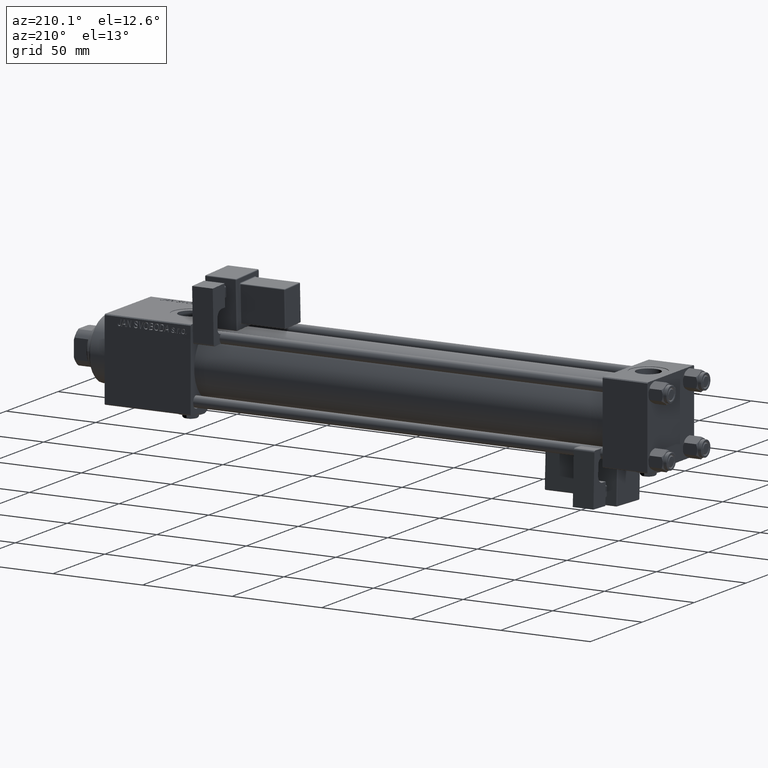
[diagram: clean part render]
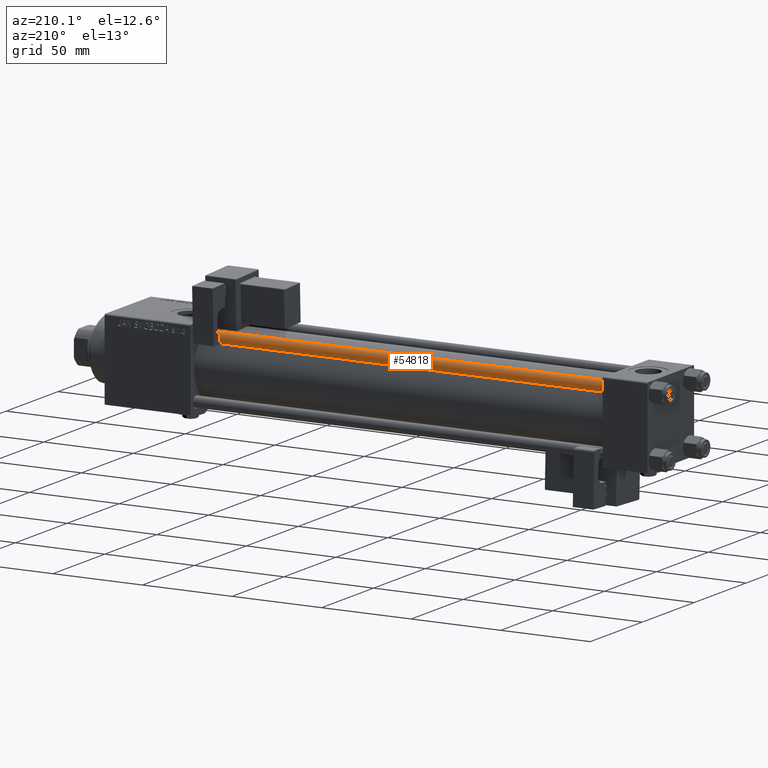
[diagram: same view with one face highlighted and labeled with its STEP entity id]
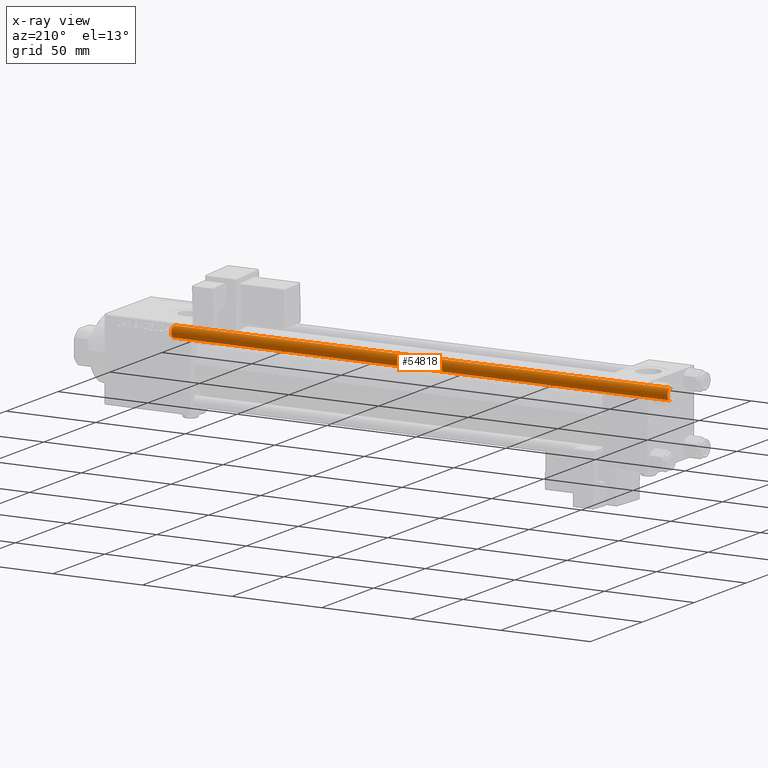
[diagram: x-ray of the same camera — body ghosted, the highlighted face saturated]
A machine part, auxiliary view. The second image highlights one B-rep face of the part: STEP entity #54818.
The next image is the same camera in x-ray: the body ghosted, the highlighted face saturated — about 0% of this face is hidden behind the body in this view.
In plain terms, the highlighted cylindrical surface (edge-blend (fillet) strip) has radius 3 mm, axis along (-1, 0, 0).
Its self-contained STEP definition (entity closure, byte-faithful):
#1144 = AXIS2_PLACEMENT_3D ( 'NONE', #28830, #37545, #7136 ) ;
#4454 = VERTEX_POINT ( 'NONE', #4581 ) ;
#4581 = CARTESIAN_POINT ( 'NONE',  ( 3.000000000000000444, 3.673940397442060361E-16, 277.5000000000000568 ) ) ;
#4612 = VECTOR ( 'NONE', #30979, 1000.000000000000000 ) ;
#4658 = EDGE_CURVE ( 'NONE', #45994, #4454, #45968, .T. ) ;
#5385 = CARTESIAN_POINT ( 'NONE',  ( 3.000000000000000444, 3.673940397442060361E-16, 0.5000000000000559552 ) ) ;
#7136 = DIRECTION ( 'NONE',  ( 1.000000000000000000, 0.000000000000000000, 0.000000000000000000 ) ) ;
#7839 = EDGE_CURVE ( 'NONE', #31026, #29893, #52474, .T. ) ;
#9184 = EDGE_CURVE ( 'NONE', #45994, #29893, #11034, .T. ) ;
#11034 = LINE ( 'NONE', #33000, #28210 ) ;
#11515 = CYLINDRICAL_SURFACE ( 'NONE', #15469, 3.000000000000000444 ) ;
#12000 = ORIENTED_EDGE ( 'NONE', *, *, #9184, .F. ) ;
#15469 = AXIS2_PLACEMENT_3D ( 'NONE', #45093, #24473, #36358 ) ;
#16449 = ORIENTED_EDGE ( 'NONE', *, *, #4658, .T. ) ;
#22136 = CARTESIAN_POINT ( 'NONE',  ( -3.000000000000000444, 0.000000000000000000, 277.5000000000000568 ) ) ;
#24203 = FACE_OUTER_BOUND ( 'NONE', #48620, .T. ) ;
#24473 = DIRECTION ( 'NONE',  ( -0.000000000000000000, -0.000000000000000000, -1.000000000000000000 ) ) ;
#28210 = VECTOR ( 'NONE', #42262, 1000.000000000000000 ) ;
#28830 = CARTESIAN_POINT ( 'NONE',  ( 0.000000000000000000, 0.000000000000000000, 0.5000000000000559552 ) ) ;
#29893 = VERTEX_POINT ( 'NONE', #36333 ) ;
#30979 = DIRECTION ( 'NONE',  ( -0.000000000000000000, -0.000000000000000000, -1.000000000000000000 ) ) ;
#31026 = VERTEX_POINT ( 'NONE', #5385 ) ;
#31174 = ORIENTED_EDGE ( 'NONE', *, *, #52005, .T. ) ;
#33000 = CARTESIAN_POINT ( 'NONE',  ( -3.000000000000000444, 0.000000000000000000, 278.0000000000000000 ) ) ;
#35181 = AXIS2_PLACEMENT_3D ( 'NONE', #35719, #44172, #39376 ) ;
#35719 = CARTESIAN_POINT ( 'NONE',  ( 0.000000000000000000, 0.000000000000000000, 277.5000000000000568 ) ) ;
#36333 = CARTESIAN_POINT ( 'NONE',  ( -3.000000000000000444, 0.000000000000000000, 0.5000000000000559552 ) ) ;
#36358 = DIRECTION ( 'NONE',  ( -1.000000000000000000, 0.000000000000000000, 0.000000000000000000 ) ) ;
#37545 = DIRECTION ( 'NONE',  ( -0.000000000000000000, -0.000000000000000000, 1.000000000000000000 ) ) ;
#37992 = ORIENTED_EDGE ( 'NONE', *, *, #7839, .T. ) ;
#39376 = DIRECTION ( 'NONE',  ( 1.000000000000000000, 0.000000000000000000, 0.000000000000000000 ) ) ;
#42262 = DIRECTION ( 'NONE',  ( -0.000000000000000000, -0.000000000000000000, -1.000000000000000000 ) ) ;
#44172 = DIRECTION ( 'NONE',  ( 0.000000000000000000, 0.000000000000000000, -1.000000000000000000 ) ) ;
#45093 = CARTESIAN_POINT ( 'NONE',  ( 0.000000000000000000, 0.000000000000000000, 278.0000000000000000 ) ) ;
#45968 = CIRCLE ( 'NONE', #35181, 3.000000000000000444 ) ;
#45994 = VERTEX_POINT ( 'NONE', #22136 ) ;
#47613 = LINE ( 'NONE', #51570, #4612 ) ;
#48620 = EDGE_LOOP ( 'NONE', ( #16449, #31174, #37992, #12000 ) ) ;
#51570 = CARTESIAN_POINT ( 'NONE',  ( 3.000000000000000444, 3.673940397442060361E-16, 278.0000000000000000 ) ) ;
#52005 = EDGE_CURVE ( 'NONE', #4454, #31026, #47613, .T. ) ;
#52474 = CIRCLE ( 'NONE', #1144, 3.000000000000000444 ) ;
#54818 = ADVANCED_FACE ( 'NONE', ( #24203 ), #11515, .T. ) ;